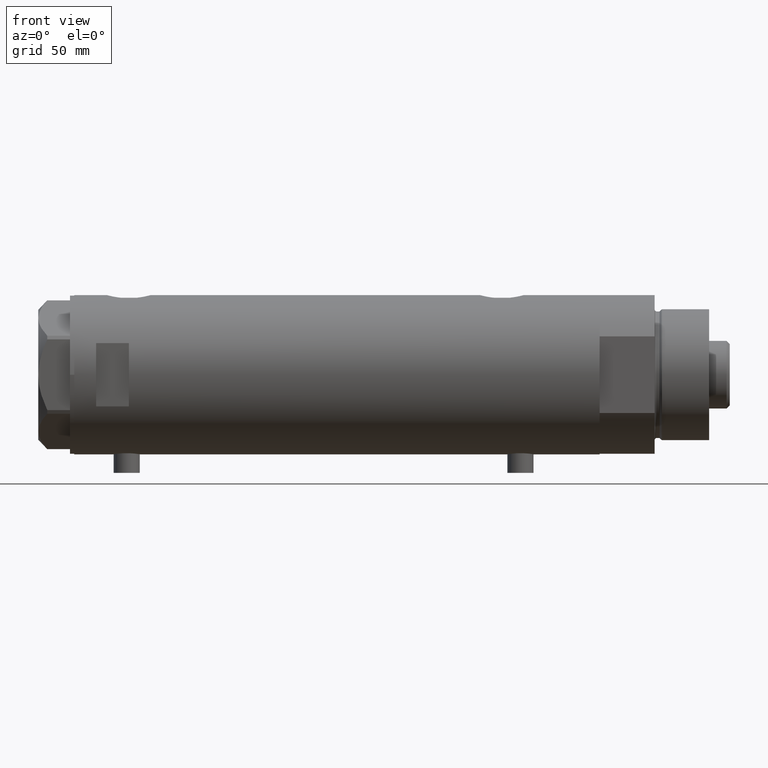
[diagram: clean part render]
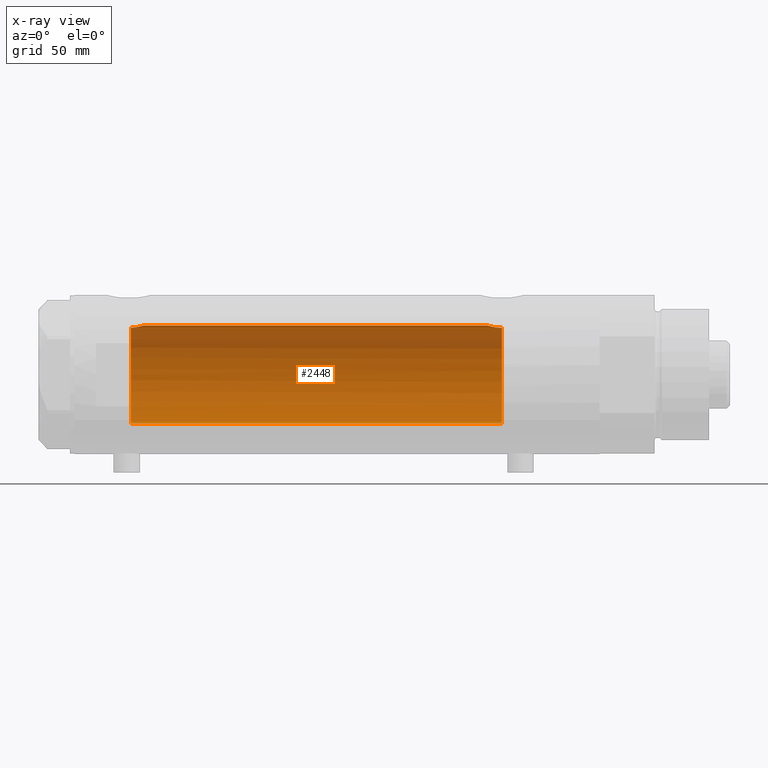
[diagram: x-ray — body ghosted, one internal face saturated and labeled with its STEP entity id]
A machine part, front view, then the same camera in x-ray: the body is ghosted and one INTERNAL B-rep face — a face not visible from any outside direction — is saturated and labeled: STEP entity #2448.
In plain terms, the highlighted cylindrical surface (partial cylindrical patch) has radius 22.5 mm, axis along (1, 0, -0).
Its self-contained STEP definition (entity closure, byte-faithful):
#22 = CARTESIAN_POINT ( 'NONE',  ( 22.50000000000000355, 8.058593785575293352E-16, -69.01999999999999602 ) ) ;
#68 = VERTEX_POINT ( 'NONE', #450 ) ;
#112 = CARTESIAN_POINT ( 'NONE',  ( 22.50000000000000355, 2.755455298081545172E-15, 120.4000000000000057 ) ) ;
#183 = CARTESIAN_POINT ( 'NONE',  ( 21.97198143592079234, 4.852313884858193482, 90.93898489903314442 ) ) ;
#235 = CARTESIAN_POINT ( 'NONE',  ( 22.44738562510071489, 1.549445000368397940, 89.00203276325541424 ) ) ;
#256 = B_SPLINE_CURVE_WITH_KNOTS ( 'NONE', 3,
 ( #4591, #2053, #1346, #1304, #2754, #1375, #2440, #3212, #4229, #2825, #3917, #2416, #909, #4693, #3941, #2082, #1006, #3554, #3963, #2394, #3892, #641 ),
 .UNSPECIFIED., .F., .F.,
 ( 4, 2, 2, 2, 2, 2, 2, 2, 2, 2, 4 ),
 ( 0.02068572879290662969, 0.02197833177876011915, 0.02327093476461360860, 0.02456353775046710153, 0.02585614073632059098, 0.02650244222924735132, 0.02714874372217410819, 0.02844134670802762888, 0.02973394969388114956, 0.03038025118680791337, 0.03102655267973467371 ),
 .UNSPECIFIED. ) ;
#450 = CARTESIAN_POINT ( 'NONE',  ( 21.53958216864941733, 6.503568251352485952, 94.40000000000000568 ) ) ;
#541 = CARTESIAN_POINT ( 'NONE',  ( 21.53958216864941733, 6.503568251352485952, 94.40000000000000568 ) ) ;
#601 = CARTESIAN_POINT ( 'NONE',  ( 0.000000000000000000, 0.000000000000000000, 120.4000000000000057 ) ) ;
#610 = DIRECTION ( 'NONE',  ( 1.000000000000000000, 0.000000000000000000, 0.000000000000000000 ) ) ;
#641 = CARTESIAN_POINT ( 'NONE',  ( 21.51635656889892800, 6.580000000000002736, -75.59999999999999432 ) ) ;
#901 = CARTESIAN_POINT ( 'NONE',  ( 22.30007684883240060, 3.011608117356129988, 89.53690468166831806 ) ) ;
#909 = CARTESIAN_POINT ( 'NONE',  ( 21.85514244747244561, 5.349553529053608258, -71.76278474480278646 ) ) ;
#955 = FACE_OUTER_BOUND ( 'NONE', #3795, .T. ) ;
#970 = DIRECTION ( 'NONE',  ( 0.000000000000000000, 0.000000000000000000, 1.000000000000000000 ) ) ;
#1001 = CARTESIAN_POINT ( 'NONE',  ( 22.40112435233284671, 2.115025885874704414, 89.16613662186026090 ) ) ;
#1006 = CARTESIAN_POINT ( 'NONE',  ( 21.58039466125149630, 6.367443256290039599, -73.88625661091904817 ) ) ;
#1026 = AXIS2_PLACEMENT_3D ( 'NONE', #601, #1376, #2851 ) ;
#1031 = VERTEX_POINT ( 'NONE', #3321 ) ;
#1115 = VECTOR ( 'NONE', #1590, 1000.000000000000000 ) ;
#1146 = ORIENTED_EDGE ( 'NONE', *, *, #4097, .F. ) ;
#1163 = B_SPLINE_CURVE_WITH_KNOTS ( 'NONE', 3,
 ( #541, #1633, #1320, #2795, #2097, #1294, #4247, #4269, #2000, #183, #4586, #1264, #2845, #901, #4661, #1001, #1342, #235, #2458, #2747, #3839, #2774 ),
 .UNSPECIFIED., .F., .F.,
 ( 4, 2, 2, 2, 2, 2, 2, 2, 2, 2, 4 ),
 ( 0.03202894702871425525, 0.03261250414633488220, 0.03319606126395550916, 0.03436317549919672837, 0.03553028973443794758, 0.03669740396967915985, 0.03786451820492037906, 0.03903163244016159827, 0.03961518955778220441, 0.04019874667540280361, 0.04136586091064399506 ),
 .UNSPECIFIED. ) ;
#1177 = ORIENTED_EDGE ( 'NONE', *, *, #2561, .T. ) ;
#1264 = CARTESIAN_POINT ( 'NONE',  ( 22.14421896774458531, 3.996618394220595061, 90.15850411031067324 ) ) ;
#1290 = CIRCLE ( 'NONE', #2145, 22.50000000000000355 ) ;
#1294 = CARTESIAN_POINT ( 'NONE',  ( 21.65875036540690601, 6.096384986856001831, 92.89350157007415021 ) ) ;
#1304 = CARTESIAN_POINT ( 'NONE',  ( 22.43846943857365517, 1.717024460055897039, -69.23305400432137446 ) ) ;
#1320 = CARTESIAN_POINT ( 'NONE',  ( 21.55996057785741371, 6.435875139617808216, 94.01641692772588499 ) ) ;
#1342 = CARTESIAN_POINT ( 'NONE',  ( 22.41810768969941847, 1.927264596308561284, 89.10552498238021712 ) ) ;
#1346 = CARTESIAN_POINT ( 'NONE',  ( 22.48752745446833146, 0.8626660575027231825, -69.06226479722903377 ) ) ;
#1375 = CARTESIAN_POINT ( 'NONE',  ( 22.31307373663816662, 2.921646833104070140, -69.68858613169777527 ) ) ;
#1376 = DIRECTION ( 'NONE',  ( -0.000000000000000000, -0.000000000000000000, -1.000000000000000000 ) ) ;
#1384 = EDGE_CURVE ( 'NONE', #68, #3422, #1290, .T. ) ;
#1430 = CARTESIAN_POINT ( 'NONE',  ( -22.50000000000000711, 0.1337051520153770823, 93.89999999999999147 ) ) ;
#1454 = CARTESIAN_POINT ( 'NONE',  ( -22.46399894542833664, 1.277836078927863550, 94.24707957770324640 ) ) ;
#1490 = EDGE_CURVE ( 'NONE', #2016, #3422, #2669, .T. ) ;
#1493 = VERTEX_POINT ( 'NONE', #22 ) ;
#1514 = CARTESIAN_POINT ( 'NONE',  ( -22.50000000000000355, 0.000000000000000000, -75.59999999999999432 ) ) ;
#1545 = ORIENTED_EDGE ( 'NONE', *, *, #1490, .F. ) ;
#1590 = DIRECTION ( 'NONE',  ( -0.000000000000000000, -0.000000000000000000, -1.000000000000000000 ) ) ;
#1633 = CARTESIAN_POINT ( 'NONE',  ( 21.54850992350584704, 6.473999851071387646, 94.20769989068857342 ) ) ;
#1662 = CARTESIAN_POINT ( 'NONE',  ( 0.000000000000000000, 0.000000000000000000, -75.59999999999999432 ) ) ;
#1763 = CARTESIAN_POINT ( 'NONE',  ( 22.50000000000000355, 0.000000000000000000, 88.82000000000000739 ) ) ;
#2000 = CARTESIAN_POINT ( 'NONE',  ( 21.85834467356398747, 5.340944334976046370, 91.53736885285054825 ) ) ;
#2016 = VERTEX_POINT ( 'NONE', #3466 ) ;
#2053 = CARTESIAN_POINT ( 'NONE',  ( 22.50000000000000711, 0.4308769323960456310, -69.02000000000001023 ) ) ;
#2057 = CYLINDRICAL_SURFACE ( 'NONE', #1026, 22.50000000000000355 ) ;
#2082 = CARTESIAN_POINT ( 'NONE',  ( 21.61738790272777777, 6.242481197317903074, -73.47475324290418541 ) ) ;
#2097 = CARTESIAN_POINT ( 'NONE',  ( 21.60406082673097572, 6.286405977953737789, 93.44666670735806235 ) ) ;
#2145 = AXIS2_PLACEMENT_3D ( 'NONE', #3860, #970, #610 ) ;
#2203 = CARTESIAN_POINT ( 'NONE',  ( -22.47624011997706361, 1.040549726802363795, 94.12289928738239553 ) ) ;
#2320 = VERTEX_POINT ( 'NONE', #1514 ) ;
#2394 = CARTESIAN_POINT ( 'NONE',  ( 21.51969523957628283, 6.569111213712935715, -75.16380209493694053 ) ) ;
#2416 = CARTESIAN_POINT ( 'NONE',  ( 21.88602906110443058, 5.222191658358653399, -71.59110908501990878 ) ) ;
#2440 = CARTESIAN_POINT ( 'NONE',  ( 22.25860915731085043, 3.306748059303226128, -69.89512753277104196 ) ) ;
#2448 = ADVANCED_FACE ( 'NONE', ( #955 ), #2057, .F. ) ;
#2458 = CARTESIAN_POINT ( 'NONE',  ( 22.45973433770731376, 1.359115216171842722, 88.95894713662340791 ) ) ;
#2561 = EDGE_CURVE ( 'NONE', #2016, #2320, #3395, .T. ) ;
#2571 = VECTOR ( 'NONE', #3370, 1000.000000000000000 ) ;
#2583 = CARTESIAN_POINT ( 'NONE',  ( -22.50000000000000355, 3.061617244149333364E-16, 93.90000000000000568 ) ) ;
#2669 = B_SPLINE_CURVE_WITH_KNOTS ( 'NONE', 3,
 ( #2583, #1430, #3612, #4421, #3269, #2903, #2203, #1454, #4337, #3249 ),
 .UNSPECIFIED., .F., .F.,
 ( 4, 2, 2, 2, 4 ),
 ( 0.007822175643245100202, 0.008222643399515457141, 0.008623111155785812346, 0.009023578912056167550, 0.009424046668326524490 ),
 .UNSPECIFIED. ) ;
#2724 = LINE ( 'NONE', #112, #1115 ) ;
#2747 = CARTESIAN_POINT ( 'NONE',  ( 22.48961798642638144, 0.7839168256130889523, 88.85525408827135152 ) ) ;
#2754 = CARTESIAN_POINT ( 'NONE',  ( 22.40265168709897026, 2.128491761919766301, -69.35897789146818582 ) ) ;
#2774 = CARTESIAN_POINT ( 'NONE',  ( 22.50000000000000355, 0.000000000000000000, 88.82000000000000739 ) ) ;
#2795 = CARTESIAN_POINT ( 'NONE',  ( 21.58771824211647683, 6.342145538420568052, 93.63591924784435605 ) ) ;
#2825 = CARTESIAN_POINT ( 'NONE',  ( 21.98170506496023791, 4.804030677015548534, -71.09847163284564431 ) ) ;
#2845 = CARTESIAN_POINT ( 'NONE',  ( 22.20005338163446496, 3.677069589895778812, 89.92964083487821370 ) ) ;
#2851 = DIRECTION ( 'NONE',  ( -1.000000000000000000, 0.000000000000000000, 0.000000000000000000 ) ) ;
#2903 = CARTESIAN_POINT ( 'NONE',  ( -22.48163274036980397, 0.9177758873189107991, 94.07071222075917660 ) ) ;
#3141 = DIRECTION ( 'NONE',  ( 0.000000000000000000, 0.000000000000000000, -1.000000000000000000 ) ) ;
#3149 = CARTESIAN_POINT ( 'NONE',  ( -22.44994432064364887, 1.499999999999989564, 94.40000000000000568 ) ) ;
#3212 = CARTESIAN_POINT ( 'NONE',  ( 22.14109776314136724, 4.018961829707384581, -70.37237162697964266 ) ) ;
#3232 = ORIENTED_EDGE ( 'NONE', *, *, #1384, .T. ) ;
#3249 = CARTESIAN_POINT ( 'NONE',  ( -22.44994432064364887, 1.499999999999989564, 94.40000000000000568 ) ) ;
#3269 = CARTESIAN_POINT ( 'NONE',  ( -22.49055927180484105, 0.6639780822022010032, 93.98607637978751939 ) ) ;
#3321 = CARTESIAN_POINT ( 'NONE',  ( 21.51635656889892800, 6.580000000000002736, -75.59999999999999432 ) ) ;
#3370 = DIRECTION ( 'NONE',  ( -0.000000000000000000, -0.000000000000000000, -1.000000000000000000 ) ) ;
#3395 = LINE ( 'NONE', #4117, #2571 ) ;
#3422 = VERTEX_POINT ( 'NONE', #3149 ) ;
#3466 = CARTESIAN_POINT ( 'NONE',  ( -22.50000000000000355, 3.061617244149333364E-16, 93.90000000000000568 ) ) ;
#3546 = ORIENTED_EDGE ( 'NONE', *, *, #4182, .F. ) ;
#3554 = CARTESIAN_POINT ( 'NONE',  ( 21.54248662244913604, 6.494090541481658541, -74.51861175082140676 ) ) ;
#3574 = DIRECTION ( 'NONE',  ( -1.000000000000000000, 0.000000000000000000, 0.000000000000000000 ) ) ;
#3600 = AXIS2_PLACEMENT_3D ( 'NONE', #1662, #3141, #3574 ) ;
#3612 = CARTESIAN_POINT ( 'NONE',  ( -22.49880827379606174, 0.2667964930359341125, 93.91065720946404838 ) ) ;
#3795 = EDGE_LOOP ( 'NONE', ( #1146, #4749, #3232, #1545, #1177, #4353, #3546 ) ) ;
#3819 = CIRCLE ( 'NONE', #3600, 22.50000000000000355 ) ;
#3839 = CARTESIAN_POINT ( 'NONE',  ( 22.50000000000000000, 0.3947970979781452727, 88.81999999999999318 ) ) ;
#3860 = CARTESIAN_POINT ( 'NONE',  ( 0.000000000000000000, 0.000000000000000000, 94.40000000000000568 ) ) ;
#3892 = CARTESIAN_POINT ( 'NONE',  ( 21.51635656889893156, 6.580000000000001847, -75.38312317022888465 ) ) ;
#3917 = CARTESIAN_POINT ( 'NONE',  ( 21.94924653817634663, 4.949760619110004534, -71.25922104935665402 ) ) ;
#3941 = CARTESIAN_POINT ( 'NONE',  ( 21.71097692913351906, 5.908765693315412904, -72.67224774632268236 ) ) ;
#3963 = CARTESIAN_POINT ( 'NONE',  ( 21.53277870401796434, 6.526097350343576409, -74.73193080670431243 ) ) ;
#4097 = EDGE_CURVE ( 'NONE', #4318, #1493, #2724, .T. ) ;
#4117 = CARTESIAN_POINT ( 'NONE',  ( -22.50000000000000355, 0.000000000000000000, 120.4000000000000057 ) ) ;
#4182 = EDGE_CURVE ( 'NONE', #1493, #1031, #256, .T. ) ;
#4229 = CARTESIAN_POINT ( 'NONE',  ( 22.07793805162484091, 4.348669293362737776, -70.64321183416399208 ) ) ;
#4247 = CARTESIAN_POINT ( 'NONE',  ( 21.70300828301578733, 5.938634204148080187, 92.54008341356920653 ) ) ;
#4251 = EDGE_CURVE ( 'NONE', #2320, #1031, #3819, .T. ) ;
#4269 = CARTESIAN_POINT ( 'NONE',  ( 21.80257506594836414, 5.561983929949493088, 91.86293428743495326 ) ) ;
#4318 = VERTEX_POINT ( 'NONE', #1763 ) ;
#4337 = CARTESIAN_POINT ( 'NONE',  ( -22.45709582300228746, 1.392966113493022462, 94.31972458511978630 ) ) ;
#4353 = ORIENTED_EDGE ( 'NONE', *, *, #4251, .T. ) ;
#4421 = CARTESIAN_POINT ( 'NONE',  ( -22.49410607591505240, 0.5317386154976213586, 93.95352050033554292 ) ) ;
#4512 = EDGE_CURVE ( 'NONE', #68, #4318, #1163, .T. ) ;
#4586 = CARTESIAN_POINT ( 'NONE',  ( 22.03020271031500599, 4.583618747547674843, 90.66326305060307789 ) ) ;
#4591 = CARTESIAN_POINT ( 'NONE',  ( 22.50000000000000355, 8.058593785575293352E-16, -69.01999999999999602 ) ) ;
#4661 = CARTESIAN_POINT ( 'NONE',  ( 22.34487948028763427, 2.662928462767977233, 89.37031008565887191 ) ) ;
#4693 = CARTESIAN_POINT ( 'NONE',  ( 21.76592257976932743, 5.705656113855375189, -72.29484284637811697 ) ) ;
#4749 = ORIENTED_EDGE ( 'NONE', *, *, #4512, .F. ) ;